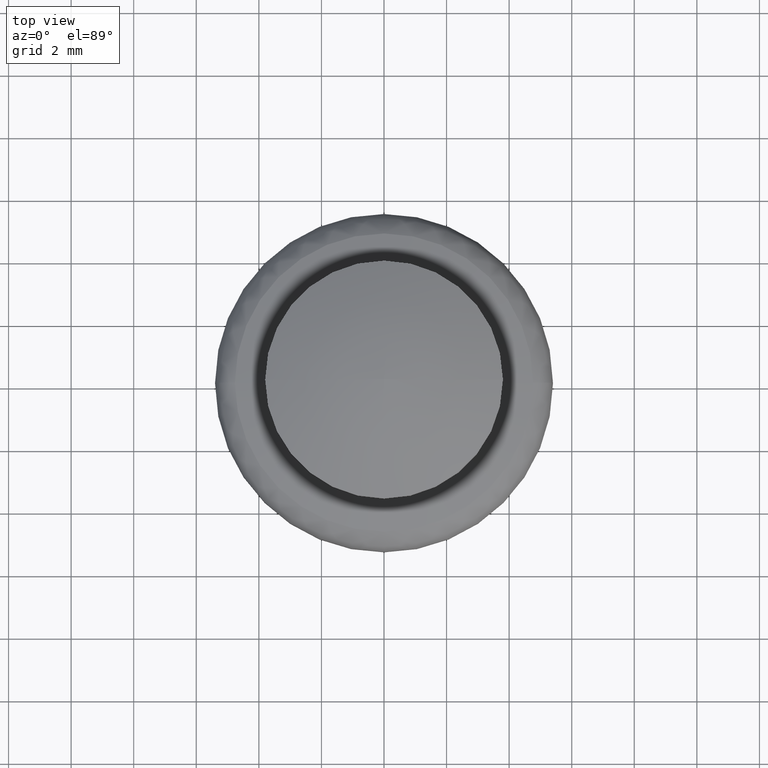
[diagram: clean part render]
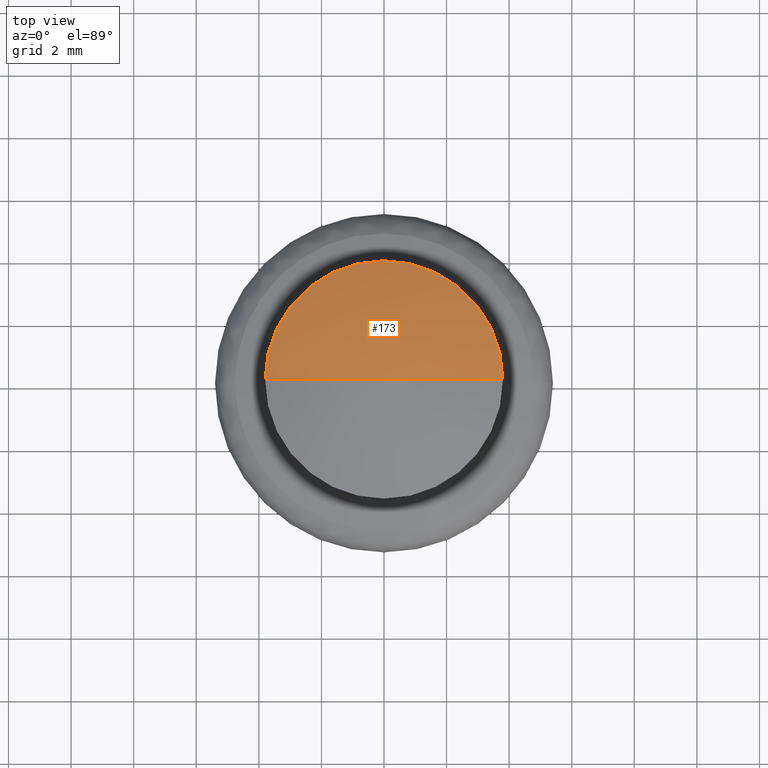
[diagram: same view with one face highlighted and labeled with its STEP entity id]
A machine part, top view. The second image highlights one B-rep face of the part: STEP entity #173.
In plain terms, the highlighted spherical surface has radius 9.425 mm.
Its self-contained STEP definition (entity closure, byte-faithful):
#173=ADVANCED_FACE('',(#808),#807,.T.);
#807=SPHERICAL_SURFACE('',#1435,9.42500000000E+00);
#808=FACE_OUTER_BOUND('',#1436,.T.);
#1432=CARTESIAN_POINT('',(0.00000000000E+00,0.00000000000E+00,-6.62500000000E+00));
#1433=DIRECTION('',(0.00000000000E+00,0.00000000000E+00,-1.00000000000E+00));
#1434=DIRECTION('',(-1.00000000000E+00,1.22460635382E-16,-0.00000000000E+00));
#1435=AXIS2_PLACEMENT_3D('',#1432,#1433,#1434);
#1436=EDGE_LOOP('',(#1876,#1877,#1878));
#1876=ORIENTED_EDGE('',*,*,#2114,.F.);
#1877=ORIENTED_EDGE('',*,*,#2115,.F.);
#1878=ORIENTED_EDGE('',*,*,#2116,.T.);
#2114=EDGE_CURVE('',#3262,#3263,#3264,.T.);
#2115=EDGE_CURVE('',#3270,#3262,#3271,.T.);
#2116=EDGE_CURVE('',#3270,#3263,#3277,.T.);
#3262=VERTEX_POINT('',#4181);
#3263=VERTEX_POINT('',#4182);
#3264=CIRCLE('',#4186,3.80000000000E+00);
#3270=VERTEX_POINT('',#4187);
#3271=(BOUNDED_CURVE() B_SPLINE_CURVE(2,(#4188,#4189,#4190),.UNSPECIFIED.,.F.,.F.) B_SPLINE_CURVE_WITH_KNOTS((3,3),(0.00000000000E+00,1.00000000000E+00),.UNSPECIFIED.) CURVE() GEOMETRIC_REPRESENTATION_ITEM() RATIONAL_B_SPLINE_CURVE((1.00000000000E+00,9.78549784987E-01,1.00000000000E+00)) REPRESENTATION_ITEM('') );
#3277=(BOUNDED_CURVE() B_SPLINE_CURVE(2,(#4191,#4192,#4193),.UNSPECIFIED.,.F.,.F.) B_SPLINE_CURVE_WITH_KNOTS((3,3),(0.00000000000E+00,1.00000000000E+00),.UNSPECIFIED.) CURVE() GEOMETRIC_REPRESENTATION_ITEM() RATIONAL_B_SPLINE_CURVE((7.50000000000E-01,7.33912338740E-01,7.50000000000E-01)) REPRESENTATION_ITEM('') );
#4181=CARTESIAN_POINT('',(-3.80000000000E+00,0.00000000000E+00,2.00000000000E+00));
#4182=CARTESIAN_POINT('',(3.80000000000E+00,4.44089209850E-16,2.00000000000E+00));
#4183=CARTESIAN_POINT('',(0.00000000000E+00,0.00000000000E+00,2.00000000000E+00));
#4184=DIRECTION('',(-0.00000000000E+00,0.00000000000E+00,-1.00000000000E+00));
#4185=DIRECTION('',(-1.00000000000E+00,-1.22460635382E-16,0.00000000000E+00));
#4186=AXIS2_PLACEMENT_3D('',#4183,#4184,#4185);
#4187=CARTESIAN_POINT('',(-5.77095744239E-16,7.06715115159E-32,2.80000000000E+00));
#4188=CARTESIAN_POINT('',(-5.77095744239E-16,7.06715115159E-32,2.80000000000E+00));
#4189=CARTESIAN_POINT('',(-1.98421052632E+00,2.42987681785E-16,2.80000000000E+00));
#4190=CARTESIAN_POINT('',(-3.80000000000E+00,4.65350414453E-16,2.00000000000E+00));
#4191=CARTESIAN_POINT('',(5.77095744239E-16,-6.57384087684E-32,2.80000000000E+00));
#4192=CARTESIAN_POINT('',(1.98421052632E+00,-3.78186523792E-16,2.80000000000E+00));
#4193=CARTESIAN_POINT('',(3.80000000000E+00,-5.92118946467E-16,2.00000000000E+00));